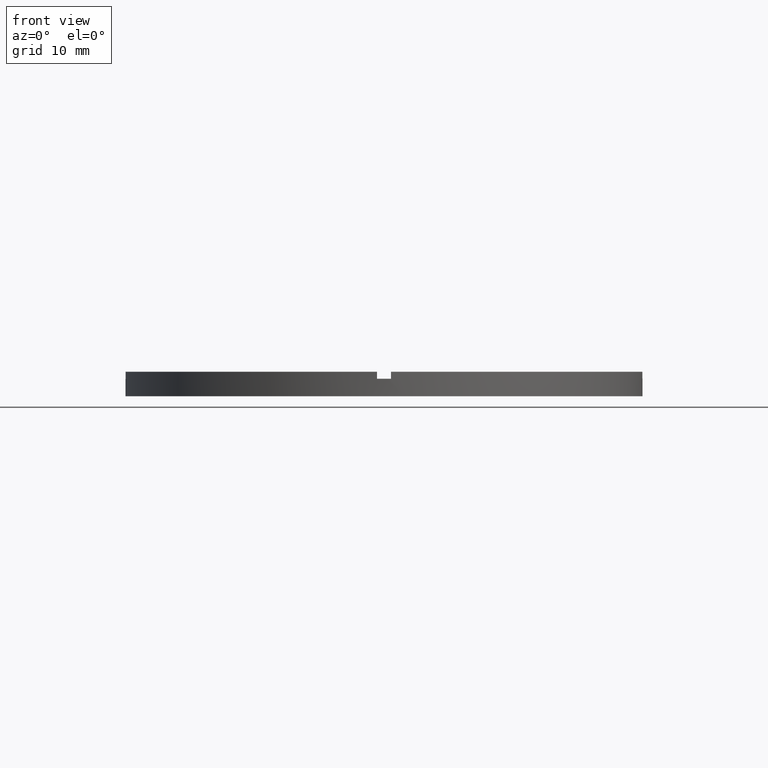
[diagram: clean part render]
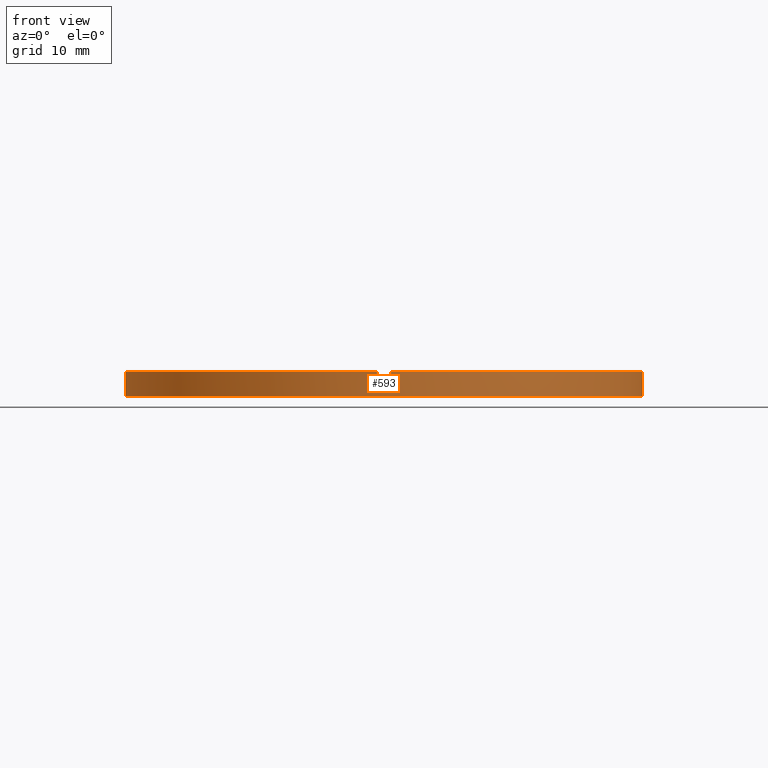
[diagram: same view with one face highlighted and labeled with its STEP entity id]
A machine part, front view. The second image highlights one B-rep face of the part: STEP entity #593.
In plain terms, the highlighted cylindrical surface (partial cylindrical patch) has radius 37 mm, axis along (-0, -0, -1).
Its self-contained STEP definition (entity closure, byte-faithful):
#21 = ORIENTED_EDGE ( 'NONE', *, *, #283, .F. ) ;
#22 = DIRECTION ( 'NONE',  ( 1.000000000000000000, 0.000000000000000000, 0.000000000000000000 ) ) ;
#33 = EDGE_CURVE ( 'NONE', #623, #206, #118, .T. ) ;
#35 = AXIS2_PLACEMENT_3D ( 'NONE', #217, #319, #585 ) ;
#36 = DIRECTION ( 'NONE',  ( 0.000000000000000000, 0.000000000000000000, 1.000000000000000000 ) ) ;
#40 = DIRECTION ( 'NONE',  ( 1.000000000000000000, 0.000000000000000000, 0.000000000000000000 ) ) ;
#41 = EDGE_CURVE ( 'NONE', #739, #545, #643, .T. ) ;
#56 = CARTESIAN_POINT ( 'NONE',  ( -36.98648401781385786, -1.000000000000027311, 3.500000000000000000 ) ) ;
#60 = CARTESIAN_POINT ( 'NONE',  ( 37.00000000000000000, 4.531193156845206793E-15, 2.500000000000000000 ) ) ;
#65 = CARTESIAN_POINT ( 'NONE',  ( 0.000000000000000000, 0.000000000000000000, 3.500000000000000000 ) ) ;
#77 = CIRCLE ( 'NONE', #412, 37.00000000000000000 ) ;
#97 = DIRECTION ( 'NONE',  ( 0.000000000000000000, 0.000000000000000000, 1.000000000000000000 ) ) ;
#100 = DIRECTION ( 'NONE',  ( 0.000000000000000000, 0.000000000000000000, 1.000000000000000000 ) ) ;
#105 = CIRCLE ( 'NONE', #35, 37.00000000000000000 ) ;
#114 = VERTEX_POINT ( 'NONE', #430 ) ;
#118 = LINE ( 'NONE', #561, #137 ) ;
#135 = VECTOR ( 'NONE', #180, 1000.000000000000000 ) ;
#136 = ORIENTED_EDGE ( 'NONE', *, *, #250, .F. ) ;
#137 = VECTOR ( 'NONE', #373, 1000.000000000000000 ) ;
#149 = CARTESIAN_POINT ( 'NONE',  ( -37.00000000000000000, 0.000000000000000000, 2.500000000000000000 ) ) ;
#159 = CIRCLE ( 'NONE', #290, 37.00000000000000000 ) ;
#180 = DIRECTION ( 'NONE',  ( -0.000000000000000000, -0.000000000000000000, -1.000000000000000000 ) ) ;
#181 = EDGE_CURVE ( 'NONE', #686, #461, #159, .T. ) ;
#187 = EDGE_CURVE ( 'NONE', #375, #742, #105, .T. ) ;
#189 = DIRECTION ( 'NONE',  ( -1.000000000000000000, 0.000000000000000000, 0.000000000000000000 ) ) ;
#199 = CARTESIAN_POINT ( 'NONE',  ( 36.98648401781385076, -1.000000000000157652, 3.500000000000000000 ) ) ;
#201 = ORIENTED_EDGE ( 'NONE', *, *, #41, .T. ) ;
#206 = VERTEX_POINT ( 'NONE', #771 ) ;
#217 = CARTESIAN_POINT ( 'NONE',  ( 0.000000000000000000, 0.000000000000000000, 3.500000000000000000 ) ) ;
#226 = VERTEX_POINT ( 'NONE', #448 ) ;
#230 = ORIENTED_EDGE ( 'NONE', *, *, #479, .T. ) ;
#231 = ORIENTED_EDGE ( 'NONE', *, *, #570, .F. ) ;
#234 = VERTEX_POINT ( 'NONE', #777 ) ;
#245 = CARTESIAN_POINT ( 'NONE',  ( -37.00000000000000000, 0.000000000000000000, 0.000000000000000000 ) ) ;
#247 = CARTESIAN_POINT ( 'NONE',  ( -37.00000000000000000, 0.000000000000000000, 3.500000000000000000 ) ) ;
#249 = VECTOR ( 'NONE', #97, 1000.000000000000000 ) ;
#250 = EDGE_CURVE ( 'NONE', #234, #623, #77, .T. ) ;
#251 = CARTESIAN_POINT ( 'NONE',  ( -36.98648401781385786, -1.000000000000027311, 2.500000000000000000 ) ) ;
#255 = LINE ( 'NONE', #556, #249 ) ;
#264 = CARTESIAN_POINT ( 'NONE',  ( 0.9999999999998400169, -36.98648401781386497, 3.500000000000000000 ) ) ;
#275 = DIRECTION ( 'NONE',  ( -0.000000000000000000, 0.000000000000000000, 1.000000000000000000 ) ) ;
#283 = EDGE_CURVE ( 'NONE', #114, #226, #359, .T. ) ;
#290 = AXIS2_PLACEMENT_3D ( 'NONE', #550, #36, #757 ) ;
#309 = VECTOR ( 'NONE', #589, 1000.000000000000000 ) ;
#310 = DIRECTION ( 'NONE',  ( -0.000000000000000000, -0.000000000000000000, -1.000000000000000000 ) ) ;
#314 = VECTOR ( 'NONE', #310, 1000.000000000000000 ) ;
#319 = DIRECTION ( 'NONE',  ( 0.000000000000000000, 0.000000000000000000, 1.000000000000000000 ) ) ;
#331 = LINE ( 'NONE', #264, #314 ) ;
#349 = ORIENTED_EDGE ( 'NONE', *, *, #460, .T. ) ;
#359 = CIRCLE ( 'NONE', #621, 37.00000000000000000 ) ;
#373 = DIRECTION ( 'NONE',  ( -0.000000000000000000, -0.000000000000000000, -1.000000000000000000 ) ) ;
#375 = VERTEX_POINT ( 'NONE', #578 ) ;
#391 = DIRECTION ( 'NONE',  ( 0.000000000000000000, 0.000000000000000000, 1.000000000000000000 ) ) ;
#395 = CARTESIAN_POINT ( 'NONE',  ( -36.98648401781385786, -1.000000000000027311, 3.500000000000000000 ) ) ;
#406 = EDGE_LOOP ( 'NONE', ( #503, #136, #547, #624, #458, #21, #230, #498, #765, #231, #201, #349 ) ) ;
#412 = AXIS2_PLACEMENT_3D ( 'NONE', #462, #451, #711 ) ;
#427 = CARTESIAN_POINT ( 'NONE',  ( 0.000000000000000000, 0.000000000000000000, 2.500000000000000000 ) ) ;
#428 = CARTESIAN_POINT ( 'NONE',  ( 0.000000000000000000, 0.000000000000000000, 0.000000000000000000 ) ) ;
#430 = CARTESIAN_POINT ( 'NONE',  ( -1.000000000000160094, -36.98648401781385076, 2.500000000000000000 ) ) ;
#443 = DIRECTION ( 'NONE',  ( 0.000000000000000000, 0.000000000000000000, 1.000000000000000000 ) ) ;
#446 = EDGE_CURVE ( 'NONE', #234, #742, #474, .T. ) ;
#448 = CARTESIAN_POINT ( 'NONE',  ( 0.9999999999998400169, -36.98648401781386497, 2.500000000000000000 ) ) ;
#449 = AXIS2_PLACEMENT_3D ( 'NONE', #428, #391, #511 ) ;
#451 = DIRECTION ( 'NONE',  ( 0.000000000000000000, 0.000000000000000000, 1.000000000000000000 ) ) ;
#458 = ORIENTED_EDGE ( 'NONE', *, *, #692, .T. ) ;
#460 = EDGE_CURVE ( 'NONE', #545, #206, #477, .T. ) ;
#461 = VERTEX_POINT ( 'NONE', #638 ) ;
#462 = CARTESIAN_POINT ( 'NONE',  ( 0.000000000000000000, 0.000000000000000000, 2.500000000000000000 ) ) ;
#474 = LINE ( 'NONE', #199, #735 ) ;
#477 = CIRCLE ( 'NONE', #449, 37.00000000000000000 ) ;
#479 = EDGE_CURVE ( 'NONE', #114, #461, #255, .T. ) ;
#498 = ORIENTED_EDGE ( 'NONE', *, *, #181, .F. ) ;
#503 = ORIENTED_EDGE ( 'NONE', *, *, #33, .F. ) ;
#511 = DIRECTION ( 'NONE',  ( 1.000000000000000000, 0.000000000000000000, 0.000000000000000000 ) ) ;
#512 = CIRCLE ( 'NONE', #640, 37.00000000000000000 ) ;
#545 = VERTEX_POINT ( 'NONE', #245 ) ;
#547 = ORIENTED_EDGE ( 'NONE', *, *, #446, .T. ) ;
#550 = CARTESIAN_POINT ( 'NONE',  ( 0.000000000000000000, 0.000000000000000000, 3.500000000000000000 ) ) ;
#556 = CARTESIAN_POINT ( 'NONE',  ( -1.000000000000160094, -36.98648401781385076, 3.500000000000000000 ) ) ;
#561 = CARTESIAN_POINT ( 'NONE',  ( 37.00000000000000000, 4.531193156845206793E-15, 3.500000000000000000 ) ) ;
#562 = CARTESIAN_POINT ( 'NONE',  ( 36.98648401781385076, -1.000000000000157652, 3.500000000000000000 ) ) ;
#570 = EDGE_CURVE ( 'NONE', #739, #635, #512, .T. ) ;
#577 = LINE ( 'NONE', #56, #309 ) ;
#578 = CARTESIAN_POINT ( 'NONE',  ( 0.9999999999998400169, -36.98648401781386497, 3.500000000000000000 ) ) ;
#585 = DIRECTION ( 'NONE',  ( 1.000000000000000000, 0.000000000000000000, 0.000000000000000000 ) ) ;
#589 = DIRECTION ( 'NONE',  ( -0.000000000000000000, -0.000000000000000000, -1.000000000000000000 ) ) ;
#593 = ADVANCED_FACE ( 'NONE', ( #779 ), #614, .T. ) ;
#614 = CYLINDRICAL_SURFACE ( 'NONE', #781, 37.00000000000000000 ) ;
#621 = AXIS2_PLACEMENT_3D ( 'NONE', #427, #275, #40 ) ;
#623 = VERTEX_POINT ( 'NONE', #60 ) ;
#624 = ORIENTED_EDGE ( 'NONE', *, *, #187, .F. ) ;
#630 = DIRECTION ( 'NONE',  ( -0.000000000000000000, -0.000000000000000000, -1.000000000000000000 ) ) ;
#635 = VERTEX_POINT ( 'NONE', #251 ) ;
#638 = CARTESIAN_POINT ( 'NONE',  ( -1.000000000000160094, -36.98648401781385076, 3.500000000000000000 ) ) ;
#640 = AXIS2_PLACEMENT_3D ( 'NONE', #717, #443, #22 ) ;
#643 = LINE ( 'NONE', #247, #135 ) ;
#686 = VERTEX_POINT ( 'NONE', #395 ) ;
#692 = EDGE_CURVE ( 'NONE', #375, #226, #331, .T. ) ;
#711 = DIRECTION ( 'NONE',  ( 1.000000000000000000, 0.000000000000000000, 0.000000000000000000 ) ) ;
#717 = CARTESIAN_POINT ( 'NONE',  ( 0.000000000000000000, 0.000000000000000000, 2.500000000000000000 ) ) ;
#719 = EDGE_CURVE ( 'NONE', #686, #635, #577, .T. ) ;
#735 = VECTOR ( 'NONE', #100, 1000.000000000000000 ) ;
#739 = VERTEX_POINT ( 'NONE', #149 ) ;
#742 = VERTEX_POINT ( 'NONE', #562 ) ;
#757 = DIRECTION ( 'NONE',  ( 1.000000000000000000, 0.000000000000000000, 0.000000000000000000 ) ) ;
#765 = ORIENTED_EDGE ( 'NONE', *, *, #719, .T. ) ;
#771 = CARTESIAN_POINT ( 'NONE',  ( 37.00000000000000000, 4.531193156845206793E-15, 0.000000000000000000 ) ) ;
#777 = CARTESIAN_POINT ( 'NONE',  ( 36.98648401781385076, -1.000000000000157652, 2.500000000000000000 ) ) ;
#779 = FACE_OUTER_BOUND ( 'NONE', #406, .T. ) ;
#781 = AXIS2_PLACEMENT_3D ( 'NONE', #65, #630, #189 ) ;